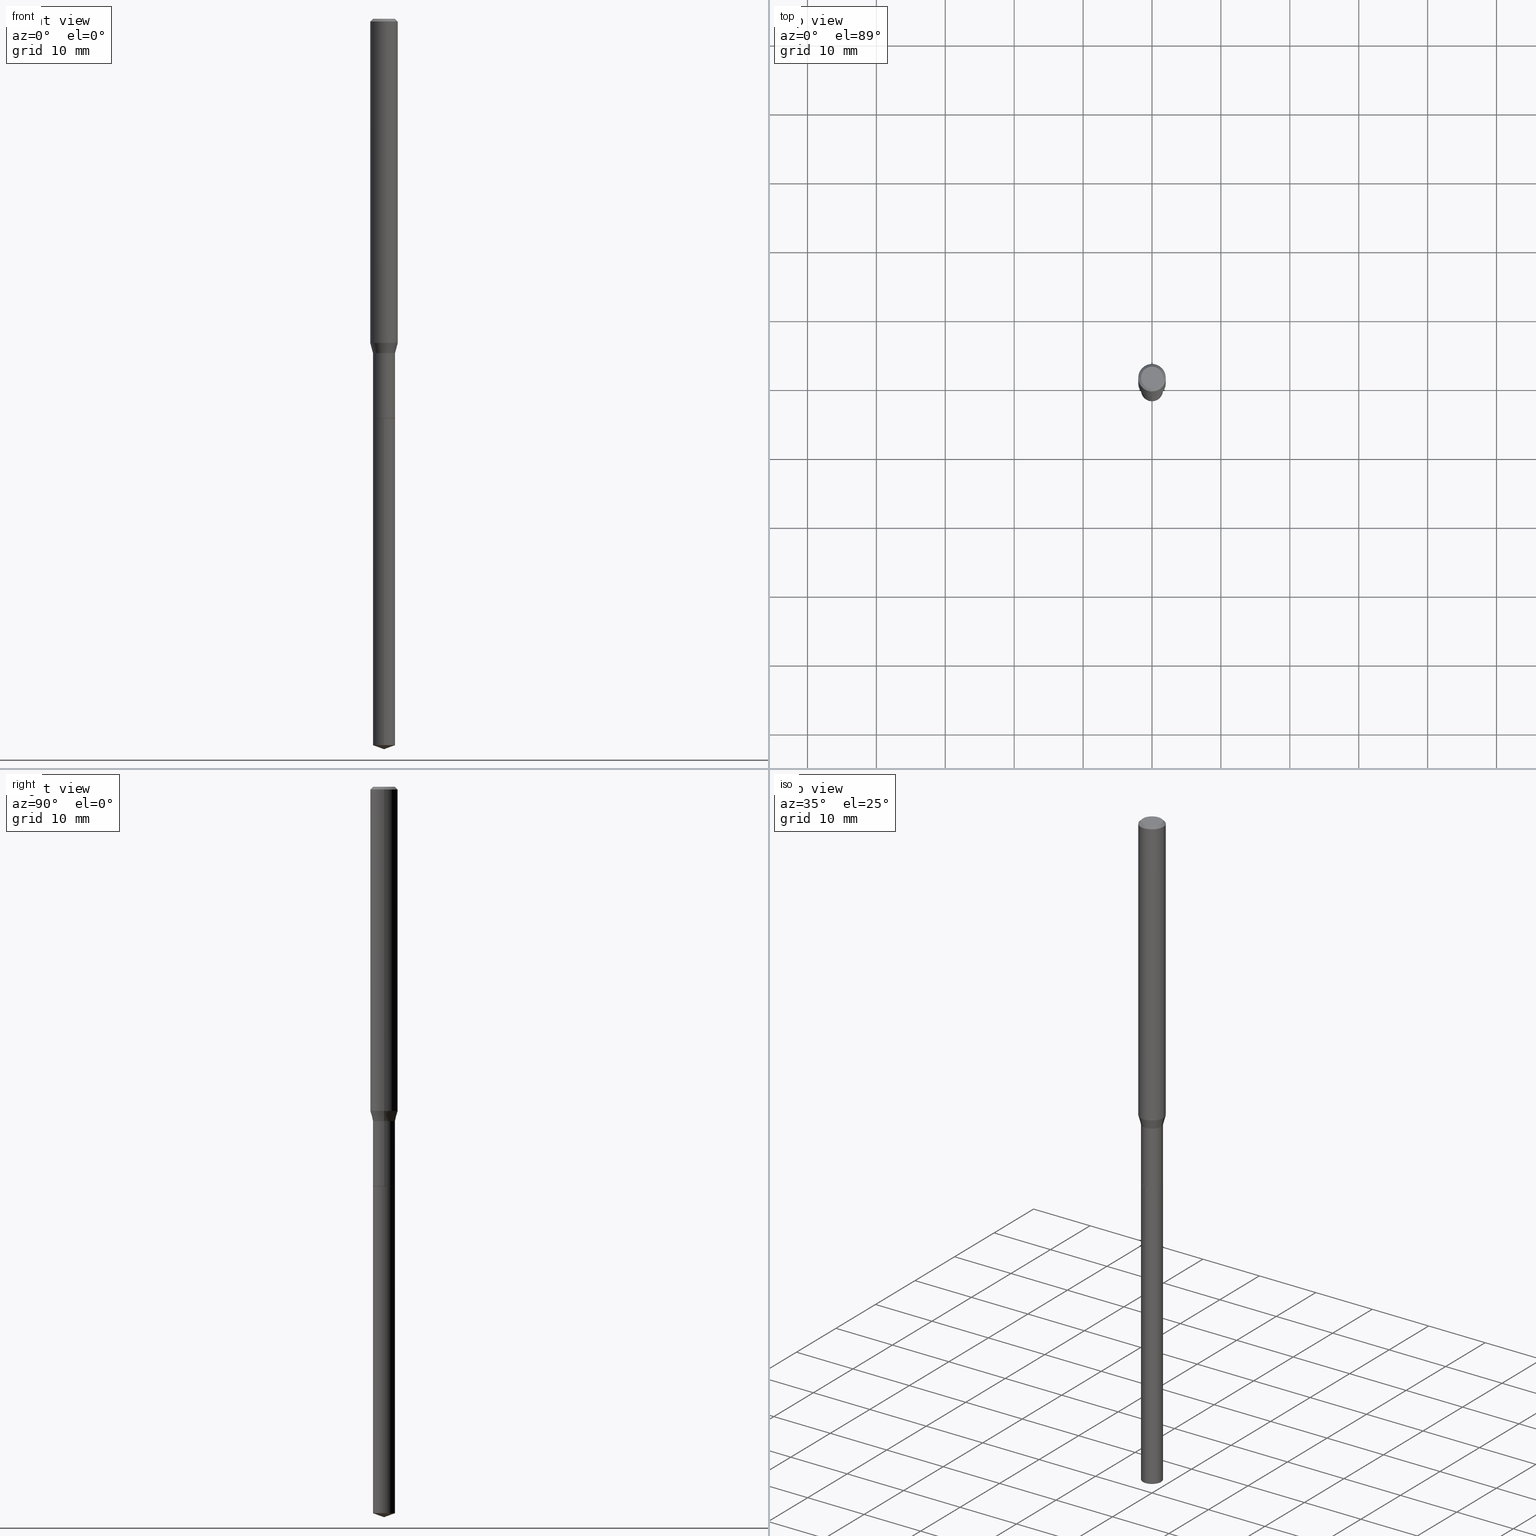
[diagram: canonical four-view strip — front | top / right | iso, engineering-drawing reading convention]
A machine part, canonical four-view strip (front | top / right | iso — engineering-drawing reading convention). The complete STEP part file that produces these views, byte-faithful:
ISO-10303-21;
HEADER;
FILE_DESCRIPTION (( 'STEP AP203' ),
    '1' );
FILE_NAME ('06053.STEP',
    '2024-04-23T19:10:07',
    ( '' ),
    ( '' ),
    'SwSTEP 2.0',
    'SolidWorks 2023',
    '' );
FILE_SCHEMA (( 'CONFIG_CONTROL_DESIGN' ));
ENDSEC;

DATA;
#1 = EDGE_CURVE ( 'NONE', #16, #3, #442, .T. ) ;
#2 = DIRECTION ( 'NONE',  ( -2.445427878602314829E-29, 3.491539949471199656E-15, 1.000000000000000000 ) ) ;
#3 = VERTEX_POINT ( 'NONE', #468 ) ;
#4 = DIRECTION ( 'NONE',  ( -0.2588190451025211836, 5.211531920934547886E-15, 0.9659258262890679791 ) ) ;
#5 = EDGE_CURVE ( 'NONE', #378, #139, #95, .T. ) ;
#6 = CIRCLE ( 'NONE', #487, 0.06299999999999998657 ) ;
#7 = VERTEX_POINT ( 'NONE', #279 ) ;
#8 = AXIS2_PLACEMENT_3D ( 'NONE', #272, #78, #156 ) ;
#9 = CARTESIAN_POINT ( 'NONE',  ( 0.07875000000000000056, -5.952550484112880131E-16, -0.01575000000000010419 ) ) ;
#10 = VERTEX_POINT ( 'NONE', #94 ) ;
#11 = CARTESIAN_POINT ( 'NONE',  ( -0.06299999999999994493, -6.872423277422732217E-15, -1.910199999999999676 ) ) ;
#12 = MANIFOLD_SOLID_BREP ( 'Body-Move/Copy2[2]', #198 ) ;
#13 = VERTEX_POINT ( 'NONE', #245 ) ;
#14 = CIRCLE ( 'NONE', #282, 0.06300000000000000044 ) ;
#15 = DIRECTION ( 'NONE',  ( -2.445468806185136597E-29, 3.491481338843145583E-15, 1.000000000000000000 ) ) ;
#16 = VERTEX_POINT ( 'NONE', #397 ) ;
#17 = LINE ( 'NONE', #392, #420 ) ;
#18 = EDGE_CURVE ( 'NONE', #139, #378, #164, .T. ) ;
#19 = VERTEX_POINT ( 'NONE', #471 ) ;
#20 = ORIENTED_EDGE ( 'NONE', *, *, #68, .T. ) ;
#21 = AXIS2_PLACEMENT_3D ( 'NONE', #332, #256, #375 ) ;
#22 = LOCAL_TIME ( 15, 10, 7.000000000000000000, #148 ) ;
#23 = CALENDAR_DATE ( 2024, 23, 4 ) ;
#24 = ORIENTED_EDGE ( 'NONE', *, *, #336, .F. ) ;
#25 = ADVANCED_FACE ( 'NONE', ( #135 ), #246, .T. ) ;
#26 = PRODUCT ( '06053', '06053', '', ( #209 ) ) ;
#27 = CARTESIAN_POINT ( 'NONE',  ( 0.07875000000000000056, -6.048991419545733705E-16, -0.01575000000000010419 ) ) ;
#28 = CC_DESIGN_PERSON_AND_ORGANIZATION_ASSIGNMENT ( #219, #254, ( #186 ) ) ;
#29 = COORDINATED_UNIVERSAL_TIME_OFFSET ( 5, 0, .BEHIND. ) ;
#30 = CARTESIAN_POINT ( 'NONE',  ( 5.582760737640047761E-29, -7.970702748445015750E-15, -2.282899999999999707 ) ) ;
#31 = APPLICATION_CONTEXT ( 'configuration controlled 3d designs of mechanical parts and assemblies' ) ;
#32 = VECTOR ( 'NONE', #262, 39.37007874015748143 ) ;
#33 = PERSON_AND_ORGANIZATION ( #294, #244 ) ;
#34 = CC_DESIGN_SECURITY_CLASSIFICATION ( #186, ( #396 ) ) ;
#35 = LINE ( 'NONE', #328, #411 ) ;
#36 = APPROVAL_DATE_TIME ( #181, #311 ) ;
#37 = DIRECTION ( 'NONE',  ( -6.982962677686265922E-15, -1.000000000000000000, 4.336266656609941617E-15 ) ) ;
#38 = DIRECTION ( 'NONE',  ( 1.000000000000000000, -6.982962677686262766E-15, 0.000000000000000000 ) ) ;
#39 = FACE_OUTER_BOUND ( 'NONE', #210, .T. ) ;
#40 = VECTOR ( 'NONE', #56, 39.37007874015748854 ) ;
#41 = ORIENTED_EDGE ( 'NONE', *, *, #132, .T. ) ;
#42 = DIRECTION ( 'NONE',  ( -6.982962677686265922E-15, -1.000000000000000000, 3.475157955500633045E-15 ) ) ;
#43 = EDGE_LOOP ( 'NONE', ( #263, #241, #237, #63 ) ) ;
#44 = ADVANCED_FACE ( 'NONE', ( #401 ), #449, .F. ) ;
#45 = CARTESIAN_POINT ( 'NONE',  ( 4.671334513574847415E-29, -6.669427653458175714E-15, -1.910199999999999676 ) ) ;
#46 = EDGE_LOOP ( 'NONE', ( #24, #177, #118, #490 ) ) ;
#47 = CARTESIAN_POINT ( 'NONE',  ( -0.06300000000000000044, 4.674220642376242452E-16, -3.855188123719040041E-18 ) ) ;
#48 = AXIS2_PLACEMENT_3D ( 'NONE', #194, #230, #122 ) ;
#49 = PRODUCT_RELATED_PRODUCT_CATEGORY ( 'detail', '', ( #26 ) ) ;
#50 = CARTESIAN_POINT ( 'NONE',  ( 4.671334513574847415E-29, -6.669427653458175714E-15, -1.910199999999999676 ) ) ;
#51 = ORIENTED_EDGE ( 'NONE', *, *, #336, .T. ) ;
#52 = UNCERTAINTY_MEASURE_WITH_UNIT (LENGTH_MEASURE( 1.000000000000000082E-05 ), #207, 'distance_accuracy_value', 'NONE');
#53 = CARTESIAN_POINT ( 'NONE',  ( -0.07875000000000000056, 4.949174797810136167E-16, -0.01575000000000010419 ) ) ;
#54 = ORIENTED_EDGE ( 'NONE', *, *, #485, .F. ) ;
#55 = ADVANCED_FACE ( 'NONE', ( #226 ), #291, .T. ) ;
#56 = DIRECTION ( 'NONE',  ( 0.2588190451025211836, 1.565188264969622559E-15, 0.9659258262890679791 ) ) ;
#57 = VERTEX_POINT ( 'NONE', #414 ) ;
#58 = AXIS2_PLACEMENT_3D ( 'NONE', #327, #298, #479 ) ;
#59 = CONICAL_SURFACE ( 'NONE', #363, 108.1684023407361792, 1.221730476396039711 ) ;
#60 = DIRECTION ( 'NONE',  ( -2.445468806185136597E-29, 3.491481338843145583E-15, 1.000000000000000000 ) ) ;
#61 = ADVANCED_FACE ( 'NONE', ( #410 ), #369, .T. ) ;
#62 = DIRECTION ( 'NONE',  ( 1.000000000000000000, 0.000000000000000000, 0.000000000000000000 ) ) ;
#63 = ORIENTED_EDGE ( 'NONE', *, *, #478, .F. ) ;
#64 = PERSON_AND_ORGANIZATION_ROLE ( 'creator' ) ;
#65 = ORIENTED_EDGE ( 'NONE', *, *, #187, .F. ) ;
#66 = APPROVAL_ROLE ( '' ) ;
#67 = CARTESIAN_POINT ( 'NONE',  ( 5.583983472043140562E-29, -7.972448489114438042E-15, -2.283399999999999874 ) ) ;
#68 = EDGE_CURVE ( 'NONE', #417, #13, #464, .T. ) ;
#69 = DATE_AND_TIME ( #23, #22 ) ;
#70 = DIRECTION ( 'NONE',  ( -2.445427878602314829E-29, 3.491539949471199656E-15, 1.000000000000000000 ) ) ;
#71 = DIRECTION ( 'NONE',  ( -2.445427878602314829E-29, 3.491539949471200051E-15, 1.000000000000000000 ) ) ;
#72 = DATE_AND_TIME ( #288, #456 ) ;
#73 = AXIS2_PLACEMENT_3D ( 'NONE', #454, #125, #269 ) ;
#74 = LINE ( 'NONE', #188, #426 ) ;
#75 = CC_DESIGN_DATE_AND_TIME_ASSIGNMENT ( #144, #292, ( #459 ) ) ;
#76 = DIRECTION ( 'NONE',  ( 2.445427878602314269E-29, -3.491539949471200051E-15, -1.000000000000000000 ) ) ;
#77 = CC_DESIGN_PERSON_AND_ORGANIZATION_ASSIGNMENT ( #334, #105, ( #396 ) ) ;
#78 = DIRECTION ( 'NONE',  ( -2.445468806185136597E-29, 3.491481338843145583E-15, 1.000000000000000000 ) ) ;
#79 = ORIENTED_EDGE ( 'NONE', *, *, #96, .F. ) ;
#80 = CARTESIAN_POINT ( 'NONE',  ( -8.607133505692360576E-28, 1.228914420494614776E-13, 35.19687874015748008 ) ) ;
#81 = CC_DESIGN_DATE_AND_TIME_ASSIGNMENT ( #72, #402, ( #186 ) ) ;
#82 = CIRCLE ( 'NONE', #8, 0.06250000000000000000 ) ;
#83 = DIRECTION ( 'NONE',  ( 1.000000000000000000, -6.982962677686265922E-15, 4.875905316334701673E-29 ) ) ;
#84 = ORIENTED_EDGE ( 'NONE', *, *, #221, .T. ) ;
#85 = DIRECTION ( 'NONE',  ( 1.000000000000000000, -6.982962677686267499E-15, 4.876176775795936353E-29 ) ) ;
#86 = ORIENTED_EDGE ( 'NONE', *, *, #1, .F. ) ;
#87 = CARTESIAN_POINT ( 'NONE',  ( 5.583983472043140562E-29, -7.972448489114438042E-15, -2.283399999999999874 ) ) ;
#88 = AXIS2_PLACEMENT_3D ( 'NONE', #189, #261, #38 ) ;
#89 = EDGE_LOOP ( 'NONE', ( #435, #51, #361, #277 ) ) ;
#90 = CARTESIAN_POINT ( 'NONE',  ( 0.06299999999999994493, -7.109354302152408812E-15, -1.910199999999999676 ) ) ;
#91 = EDGE_LOOP ( 'NONE', ( #347, #128, #86 ) ) ;
#92 = CARTESIAN_POINT ( 'NONE',  ( 4.527590345704972741E-29, -6.464199077891873134E-15, -1.851420199780788867 ) ) ;
#93 = ORIENTED_EDGE ( 'NONE', *, *, #5, .F. ) ;
#94 = CARTESIAN_POINT ( 'NONE',  ( -0.07875000000000023648, -5.904646673480791966E-15, -1.851420199780788867 ) ) ;
#95 = CIRCLE ( 'NONE', #142, 0.07875000000000000056 ) ;
#96 = EDGE_CURVE ( 'NONE', #3, #417, #482, .T. ) ;
#97 = VECTOR ( 'NONE', #360, 39.37007874015748143 ) ;
#98 = CARTESIAN_POINT ( 'NONE',  ( 3.851613369741615237E-31, -5.499083108677990156E-17, -0.01575000000000010419 ) ) ;
#99 = LINE ( 'NONE', #248, #355 ) ;
#100 = DIRECTION ( 'NONE',  ( -2.445468806185136597E-29, 3.491481338843145583E-15, 1.000000000000000000 ) ) ;
#101 = PERSON_AND_ORGANIZATION_ROLE ( 'creator' ) ;
#102 = LINE ( 'NONE', #149, #330 ) ;
#103 = AXIS2_PLACEMENT_3D ( 'NONE', #287, #70, #37 ) ;
#104 = APPROVAL_PERSON_ORGANIZATION ( #365, #247, #213 ) ;
#105 = PERSON_AND_ORGANIZATION_ROLE ( 'design_supplier' ) ;
#106 = ADVANCED_FACE ( 'NONE', ( #293 ), #150, .T. ) ;
#107 = DIRECTION ( 'NONE',  ( -6.982962677686265922E-15, -1.000000000000000000, 3.475157955500633045E-15 ) ) ;
#108 = CARTESIAN_POINT ( 'NONE',  ( 0.000000000000000000, 0.000000000000000000, 0.000000000000000000 ) ) ;
#109 = ADVANCED_FACE ( 'NONE', ( #440 ), #290, .T. ) ;
#110 = CALENDAR_DATE ( 2024, 23, 4 ) ;
#111 = FACE_OUTER_BOUND ( 'NONE', #91, .T. ) ;
#112 = APPROVAL_STATUS ( 'not_yet_approved' ) ;
#113 = AXIS2_PLACEMENT_3D ( 'NONE', #450, #115, #424 ) ;
#114 = FACE_OUTER_BOUND ( 'NONE', #461, .T. ) ;
#115 = DIRECTION ( 'NONE',  ( -2.438088387897960049E-29, 3.491481338843145188E-15, 1.000000000000000000 ) ) ;
#116 = ORIENTED_EDGE ( 'NONE', *, *, #200, .T. ) ;
#117 = PLANE ( 'NONE',  #113 ) ;
#118 = ORIENTED_EDGE ( 'NONE', *, *, #436, .T. ) ;
#119 = AXIS2_PLACEMENT_3D ( 'NONE', #108, #225, #85 ) ;
#120 = CARTESIAN_POINT ( 'NONE',  ( 5.583983472043140562E-29, -7.972448489114438042E-15, -2.283399999999999874 ) ) ;
#121 = CIRCLE ( 'NONE', #329, 0.06300000000000000044 ) ;
#122 = DIRECTION ( 'NONE',  ( -1.000000000000000000, 6.982962677686265922E-15, -4.876176775795935793E-29 ) ) ;
#123 = ORIENTED_EDGE ( 'NONE', *, *, #305, .T. ) ;
#124 = ADVANCED_FACE ( 'NONE', ( #444 ), #299, .T. ) ;
#125 = DIRECTION ( 'NONE',  ( -2.445468806185136597E-29, 3.491481338843145583E-15, 1.000000000000000000 ) ) ;
#126 = ORIENTED_EDGE ( 'NONE', *, *, #296, .T. ) ;
#127 = DIRECTION ( 'NONE',  ( 1.000000000000000000, -6.982962677686265922E-15, 4.875905316334701673E-29 ) ) ;
#128 = ORIENTED_EDGE ( 'NONE', *, *, #416, .T. ) ;
#129 = AXIS2_PLACEMENT_3D ( 'NONE', #152, #451, #83 ) ;
#130 = CARTESIAN_POINT ( 'NONE',  ( 3.851613369741615237E-31, -5.499083108677990156E-17, -0.01575000000000010419 ) ) ;
#131 = LENGTH_MEASURE_WITH_UNIT ( LENGTH_MEASURE( 0.02539999999999999897 ), #429 );
#132 = EDGE_CURVE ( 'NONE', #270, #399, #102, .T. ) ;
#133 = VERTEX_POINT ( 'NONE', #371 ) ;
#134 = CARTESIAN_POINT ( 'NONE',  ( 1.020525962298318050E-28, -1.457089451713320805E-14, -4.173199999999999577 ) ) ;
#135 = FACE_OUTER_BOUND ( 'NONE', #163, .T. ) ;
#136 = CIRCLE ( 'NONE', #267, 0.06250000000000000000 ) ;
#137 = AXIS2_PLACEMENT_3D ( 'NONE', #470, #15, #354 ) ;
#138 = APPLICATION_PROTOCOL_DEFINITION ( 'international standard', 'config_control_design', 1994, #184 ) ;
#139 = VERTEX_POINT ( 'NONE', #27 ) ;
#140 = DIRECTION ( 'NONE',  ( 1.000000000000000000, -6.982962677686267499E-15, 4.876176775795936353E-29 ) ) ;
#141 = DIRECTION ( 'NONE',  ( -2.445468806185136597E-29, 3.491481338843145583E-15, 1.000000000000000000 ) ) ;
#142 = AXIS2_PLACEMENT_3D ( 'NONE', #130, #438, #278 ) ;
#143 = CONICAL_SURFACE ( 'NONE', #481, 0.06299999999999994493, 0.2617993877991499074 ) ;
#144 = DATE_AND_TIME ( #178, #488 ) ;
#145 = CARTESIAN_POINT ( 'NONE',  ( 5.583983472043140562E-29, -7.972448489114438042E-15, -2.283399999999999874 ) ) ;
#146 = DIRECTION ( 'NONE',  ( -2.445427878602314829E-29, 3.491539949471199656E-15, 1.000000000000000000 ) ) ;
#147 = CC_DESIGN_PERSON_AND_ORGANIZATION_ASSIGNMENT ( #171, #322, ( #26 ) ) ;
#148 = COORDINATED_UNIVERSAL_TIME_OFFSET ( 5, 0, .BEHIND. ) ;
#149 = CARTESIAN_POINT ( 'NONE',  ( 0.06299999999999997269, -4.399266486942345286E-16, 3.071991368751438022E-30 ) ) ;
#150 = CONICAL_SURFACE ( 'NONE', #21, 0.07875000000000000056, 0.7853981633974450594 ) ;
#151 = VECTOR ( 'NONE', #303, 39.37007874015748143 ) ;
#152 = CARTESIAN_POINT ( 'NONE',  ( 9.427742298522557911E-47, -1.346031739168366987E-32, -3.855188123715866879E-18 ) ) ;
#153 = PLANE ( 'NONE',  #48 ) ;
#154 = CYLINDRICAL_SURFACE ( 'NONE', #73, 0.06299999999999997269 ) ;
#155 = ORIENTED_EDGE ( 'NONE', *, *, #68, .F. ) ;
#156 = DIRECTION ( 'NONE',  ( 1.000000000000000000, -6.982962677686262766E-15, 0.000000000000000000 ) ) ;
#157 = CC_DESIGN_APPROVAL ( #311, ( #186 ) ) ;
#158 = ORIENTED_EDGE ( 'NONE', *, *, #320, .F. ) ;
#159 = DIRECTION ( 'NONE',  ( -2.445468806185136597E-29, 3.491481338843145583E-15, 1.000000000000000000 ) ) ;
#160 = ORIENTED_EDGE ( 'NONE', *, *, #132, .F. ) ;
#161 = CC_DESIGN_PERSON_AND_ORGANIZATION_ASSIGNMENT ( #439, #64, ( #459 ) ) ;
#162 = DIRECTION ( 'NONE',  ( -2.445468806185136597E-29, 3.491481338843145583E-15, 1.000000000000000000 ) ) ;
#163 = EDGE_LOOP ( 'NONE', ( #203, #430, #381, #160 ) ) ;
#164 = CIRCLE ( 'NONE', #223, 0.07875000000000000056 ) ;
#165 = ORIENTED_EDGE ( 'NONE', *, *, #196, .F. ) ;
#166 = DIMENSIONAL_EXPONENTS ( 1.000000000000000000, 0.000000000000000000, 0.000000000000000000, 0.000000000000000000, 0.000000000000000000, 0.000000000000000000, 0.000000000000000000 ) ;
#167 = EDGE_LOOP ( 'NONE', ( #318, #306, #283 ) ) ;
#168 = LINE ( 'NONE', #53, #345 ) ;
#169 = MANIFOLD_SOLID_BREP ( 'Body-Move/Copy2[1]', #228 ) ;
#170 = ORIENTED_EDGE ( 'NONE', *, *, #374, .F. ) ;
#171 = PERSON_AND_ORGANIZATION ( #294, #244 ) ;
#172 = EDGE_LOOP ( 'NONE', ( #340, #116, #393, #316 ) ) ;
#173 = ADVANCED_FACE ( 'NONE', ( #111 ), #215, .T. ) ;
#174 = VECTOR ( 'NONE', #71, 39.37007874015748143 ) ;
#175 = VECTOR ( 'NONE', #231, 39.37007874015748143 ) ;
#176 = APPROVAL_DATE_TIME ( #405, #453 ) ;
#177 = ORIENTED_EDGE ( 'NONE', *, *, #296, .F. ) ;
#178 = CALENDAR_DATE ( 2024, 23, 4 ) ;
#179 = DIRECTION ( 'NONE',  ( -2.445468806185136597E-29, 3.491481338843145583E-15, 1.000000000000000000 ) ) ;
#180 = EDGE_CURVE ( 'NONE', #19, #270, #6, .T. ) ;
#181 = DATE_AND_TIME ( #373, #191 ) ;
#182 = CARTESIAN_POINT ( 'NONE',  ( 3.851613369741615237E-31, -5.499083108677990156E-17, -0.01575000000000010419 ) ) ;
#183 = CIRCLE ( 'NONE', #275, 0.06299999999999998657 ) ;
#184 = APPLICATION_CONTEXT ( 'configuration controlled 3d designs of mechanical parts and assemblies' ) ;
#185 = AXIS2_PLACEMENT_3D ( 'NONE', #87, #337, #302 ) ;
#186 = SECURITY_CLASSIFICATION ( '', '', #409 ) ;
#187 = EDGE_CURVE ( 'NONE', #273, #57, #136, .T. ) ;
#188 = CARTESIAN_POINT ( 'NONE',  ( 0.07875000000000011158, -5.499083108677943318E-16, 3.839989210939305322E-30 ) ) ;
#189 = CARTESIAN_POINT ( 'NONE',  ( 5.583983472043140562E-29, -7.972448489114438042E-15, -2.283399999999999874 ) ) ;
#190 = DIRECTION ( 'NONE',  ( -6.982962677686265922E-15, -1.000000000000000000, 0.000000000000000000 ) ) ;
#191 = LOCAL_TIME ( 15, 10, 7.000000000000000000, #29 ) ;
#192 = LINE ( 'NONE', #486, #175 ) ;
#193 = ORIENTED_EDGE ( 'NONE', *, *, #204, .T. ) ;
#194 = CARTESIAN_POINT ( 'NONE',  ( 4.713871149261278955E-47, -6.730158695841834933E-33, -1.927594061857933439E-18 ) ) ;
#195 = ORIENTED_EDGE ( 'NONE', *, *, #466, .T. ) ;
#196 = EDGE_CURVE ( 'NONE', #19, #425, #35, .T. ) ;
#197 = FACE_OUTER_BOUND ( 'NONE', #452, .T. ) ;
#198 = CLOSED_SHELL ( 'NONE', ( #55, #106, #61, #384, #25, #352, #400, #252, #124, #300, #314, #284 ) ) ;
#199 = FACE_OUTER_BOUND ( 'NONE', #389, .T. ) ;
#200 = EDGE_CURVE ( 'NONE', #425, #399, #472, .T. ) ;
#201 = AXIS2_PLACEMENT_3D ( 'NONE', #462, #285, #127 ) ;
#202 = DIRECTION ( 'NONE',  ( -2.445468806185136597E-29, 3.491481338843145583E-15, 1.000000000000000000 ) ) ;
#203 = ORIENTED_EDGE ( 'NONE', *, *, #260, .T. ) ;
#204 = EDGE_CURVE ( 'NONE', #133, #139, #74, .T. ) ;
#205 = DIRECTION ( 'NONE',  ( -6.561838499445221362E-15, -0.9396926207859103153, 0.3420201433256635504 ) ) ;
#206 = ORIENTED_EDGE ( 'NONE', *, *, #187, .T. ) ;
#207 =( CONVERSION_BASED_UNIT ( 'INCH', #131 ) LENGTH_UNIT ( ) NAMED_UNIT ( #166 ) );
#208 = ORIENTED_EDGE ( 'NONE', *, *, #394, .T. ) ;
#209 = MECHANICAL_CONTEXT ( 'NONE', #184, 'mechanical' ) ;
#210 = EDGE_LOOP ( 'NONE', ( #165, #344, #41, #313 ) ) ;
#211 = LINE ( 'NONE', #90, #40 ) ;
#212 = EDGE_LOOP ( 'NONE', ( #170, #463, #458, #364 ) ) ;
#213 = APPROVAL_ROLE ( '' ) ;
#214 = DIRECTION ( 'NONE',  ( -2.445427878602314829E-29, 3.491539949471199656E-15, 1.000000000000000000 ) ) ;
#215 = CONICAL_SURFACE ( 'NONE', #480, 108.1684023407361792, 1.221730476396039711 ) ;
#216 =( GEOMETRIC_REPRESENTATION_CONTEXT ( 3 ) GLOBAL_UNCERTAINTY_ASSIGNED_CONTEXT ( ( #52 ) ) GLOBAL_UNIT_ASSIGNED_CONTEXT ( ( #207, #350, #433 ) ) REPRESENTATION_CONTEXT ( 'NONE', 'WORKASPACE' ) );
#217 = APPROVAL_STATUS ( 'not_yet_approved' ) ;
#218 = DIRECTION ( 'NONE',  ( -2.445468806185136597E-29, 3.491481338843145583E-15, 1.000000000000000000 ) ) ;
#219 = PERSON_AND_ORGANIZATION ( #294, #244 ) ;
#220 = DIRECTION ( 'NONE',  ( -6.982962677686265922E-15, -1.000000000000000000, 4.336266656609941617E-15 ) ) ;
#221 = EDGE_CURVE ( 'NONE', #13, #417, #121, .T. ) ;
#222 = DIRECTION ( 'NONE',  ( 6.982962677686265922E-15, 1.000000000000000000, -3.491539949471200051E-15 ) ) ;
#223 = AXIS2_PLACEMENT_3D ( 'NONE', #98, #60, #321 ) ;
#224 = CIRCLE ( 'NONE', #323, 0.07875000000000023648 ) ;
#225 = DIRECTION ( 'NONE',  ( -2.445468806185136597E-29, 3.491481338843145583E-15, 1.000000000000000000 ) ) ;
#226 = FACE_OUTER_BOUND ( 'NONE', #349, .T. ) ;
#227 = CARTESIAN_POINT ( 'NONE',  ( -0.07875000000000000056, -2.700042550078244672E-15, -0.01575000000000010419 ) ) ;
#228 = CLOSED_SHELL ( 'NONE', ( #357, #289, #173, #109, #44 ) ) ;
#229 = AXIS2_PLACEMENT_3D ( 'NONE', #120, #233, #457 ) ;
#230 = DIRECTION ( 'NONE',  ( 2.438088387897960049E-29, -3.491481338843145188E-15, -1.000000000000000000 ) ) ;
#231 = DIRECTION ( 'NONE',  ( -2.445427878602314829E-29, 3.491539949471200051E-15, 1.000000000000000000 ) ) ;
#232 = ORIENTED_EDGE ( 'NONE', *, *, #485, .T. ) ;
#233 = DIRECTION ( 'NONE',  ( -2.445468806185136597E-29, 3.491481338843145583E-15, 1.000000000000000000 ) ) ;
#234 = ORIENTED_EDGE ( 'NONE', *, *, #320, .T. ) ;
#235 = AXIS2_PLACEMENT_3D ( 'NONE', #474, #100, #249 ) ;
#236 = CYLINDRICAL_SURFACE ( 'NONE', #185, 0.06300000000000000044 ) ;
#237 = ORIENTED_EDGE ( 'NONE', *, *, #305, .F. ) ;
#238 = DIRECTION ( 'NONE',  ( -2.445468806185136877E-29, 3.491481338843145188E-15, 1.000000000000000000 ) ) ;
#239 = EDGE_LOOP ( 'NONE', ( #54, #234, #386, #266 ) ) ;
#240 = LINE ( 'NONE', #467, #97 ) ;
#241 = ORIENTED_EDGE ( 'NONE', *, *, #271, .T. ) ;
#242 = ADVANCED_BREP_SHAPE_REPRESENTATION ( '06053', ( #169, #12, #315 ), #216 ) ;
#243 = AXIS2_PLACEMENT_3D ( 'NONE', #351, #214, #286 ) ;
#244 = ORGANIZATION ( 'UNSPECIFIED', 'UNSPECIFIED', '' ) ;
#245 = CARTESIAN_POINT ( 'NONE',  ( 4.476419235289648833E-16, 0.06299999999999202072, -2.283399999999999874 ) ) ;
#246 = CYLINDRICAL_SURFACE ( 'NONE', #235, 0.06299999999999997269 ) ;
#247 = APPROVAL ( #217, 'UNSPECIFIED' ) ;
#248 = CARTESIAN_POINT ( 'NONE',  ( -0.07875000000000011158, 5.595524044110796892E-16, -3.873661383575744098E-30 ) ) ;
#249 = DIRECTION ( 'NONE',  ( 1.000000000000000000, -6.982962677686265133E-15, 4.876176775795935232E-29 ) ) ;
#250 = APPROVAL_DATE_TIME ( #69, #247 ) ;
#251 = DIRECTION ( 'NONE',  ( -2.445468806185136877E-29, 3.491481338843145188E-15, 1.000000000000000000 ) ) ;
#252 = ADVANCED_FACE ( 'NONE', ( #114 ), #445, .T. ) ;
#253 = CIRCLE ( 'NONE', #268, 0.07875000000000023648 ) ;
#254 = PERSON_AND_ORGANIZATION_ROLE ( 'classification_officer' ) ;
#255 = DIRECTION ( 'NONE',  ( 1.000000000000000000, -6.982962677686272233E-15, 0.000000000000000000 ) ) ;
#256 = DIRECTION ( 'NONE',  ( 2.445468806185136597E-29, -3.491481338843145583E-15, -1.000000000000000000 ) ) ;
#257 = PERSON_AND_ORGANIZATION ( #294, #244 ) ;
#258 = DIRECTION ( 'NONE',  ( -2.445468806185136877E-29, 3.491481338843145188E-15, 1.000000000000000000 ) ) ;
#259 = AXIS2_PLACEMENT_3D ( 'NONE', #376, #141, #140 ) ;
#260 = EDGE_CURVE ( 'NONE', #270, #19, #183, .T. ) ;
#261 = DIRECTION ( 'NONE',  ( -2.445468806185136597E-29, 3.491481338843145583E-15, 1.000000000000000000 ) ) ;
#262 = DIRECTION ( 'NONE',  ( 0.7071067811866138531, -2.468850131082952047E-15, 0.7071067811864811814 ) ) ;
#263 = ORIENTED_EDGE ( 'NONE', *, *, #408, .T. ) ;
#264 = LINE ( 'NONE', #380, #32 ) ;
#265 = EDGE_CURVE ( 'NONE', #273, #270, #264, .T. ) ;
#266 = ORIENTED_EDGE ( 'NONE', *, *, #180, .F. ) ;
#267 = AXIS2_PLACEMENT_3D ( 'NONE', #367, #179, #335 ) ;
#268 = AXIS2_PLACEMENT_3D ( 'NONE', #92, #162, #312 ) ;
#269 = DIRECTION ( 'NONE',  ( 1.000000000000000000, -6.982962677686265133E-15, 4.876176775795935232E-29 ) ) ;
#270 = VERTEX_POINT ( 'NONE', #377 ) ;
#271 = EDGE_CURVE ( 'NONE', #425, #10, #388, .T. ) ;
#272 = CARTESIAN_POINT ( 'NONE',  ( 5.583983472043140562E-29, -7.972448489114438042E-15, -2.283399999999999874 ) ) ;
#273 = VERTEX_POINT ( 'NONE', #308 ) ;
#274 = DIRECTION ( 'NONE',  ( -2.445468806185136597E-29, 3.491481338843145583E-15, 1.000000000000000000 ) ) ;
#275 = AXIS2_PLACEMENT_3D ( 'NONE', #489, #274, #418 ) ;
#276 = LINE ( 'NONE', #431, #473 ) ;
#277 = ORIENTED_EDGE ( 'NONE', *, *, #436, .F. ) ;
#278 = DIRECTION ( 'NONE',  ( 1.000000000000000000, -6.982962677686265922E-15, 0.000000000000000000 ) ) ;
#279 = CARTESIAN_POINT ( 'NONE',  ( 0.06300000000000000044, -5.137332111354472216E-16, -3.855188123712532709E-18 ) ) ;
#280 = DIRECTION ( 'NONE',  ( 6.676917655467989428E-15, 0.9396926207859126468, 0.3420201433256570001 ) ) ;
#281 = AXIS2_PLACEMENT_3D ( 'NONE', #326, #477, #220 ) ;
#282 = AXIS2_PLACEMENT_3D ( 'NONE', #346, #2, #190 ) ;
#283 = ORIENTED_EDGE ( 'NONE', *, *, #333, .F. ) ;
#284 = ADVANCED_FACE ( 'NONE', ( #415 ), #403, .T. ) ;
#285 = DIRECTION ( 'NONE',  ( -2.445468806185136597E-29, 3.491481338843145583E-15, 1.000000000000000000 ) ) ;
#286 = DIRECTION ( 'NONE',  ( -6.982962677686265922E-15, -1.000000000000000000, 0.000000000000000000 ) ) ;
#287 = CARTESIAN_POINT ( 'NONE',  ( 5.583983472043140562E-29, -7.972448489114438042E-15, -2.283399999999999874 ) ) ;
#288 = CALENDAR_DATE ( 2024, 23, 4 ) ;
#289 = ADVANCED_FACE ( 'NONE', ( #460 ), #59, .T. ) ;
#290 = CYLINDRICAL_SURFACE ( 'NONE', #103, 0.06300000000000000044 ) ;
#291 = CONICAL_SURFACE ( 'NONE', #88, 0.06250000000000000000, 0.7853981633975420928 ) ;
#292 = DATE_TIME_ROLE ( 'creation_date' ) ;
#293 = FACE_OUTER_BOUND ( 'NONE', #89, .T. ) ;
#294 = PERSON ( 'UNSPECIFIED', 'UNSPECIFIED', 'UNSPECIFIED', ('UNSPECIFIED'), ('UNSPECIFIED'), ('UNSPECIFIED') ) ;
#295 = CARTESIAN_POINT ( 'NONE',  ( -4.399266486941789139E-16, -0.06300000000000798017, -2.283399999999999430 ) ) ;
#296 = EDGE_CURVE ( 'NONE', #324, #7, #379, .T. ) ;
#297 = APPROVAL_ROLE ( '' ) ;
#298 = DIRECTION ( 'NONE',  ( -2.445468806185136597E-29, 3.491481338843145583E-15, 1.000000000000000000 ) ) ;
#299 = CONICAL_SURFACE ( 'NONE', #353, 0.07875000000000000056, 0.7853981633974450594 ) ;
#300 = ADVANCED_FACE ( 'NONE', ( #199 ), #153, .F. ) ;
#301 = APPROVAL_PERSON_ORGANIZATION ( #33, #311, #66 ) ;
#302 = DIRECTION ( 'NONE',  ( -6.982962677686265922E-15, -1.000000000000000000, 4.336266656609941617E-15 ) ) ;
#303 = DIRECTION ( 'NONE',  ( 0.7071067811865452413, -7.319954787623248157E-15, -0.7071067811865497932 ) ) ;
#304 = LINE ( 'NONE', #9, #151 ) ;
#305 = EDGE_CURVE ( 'NONE', #133, #10, #224, .T. ) ;
#306 = ORIENTED_EDGE ( 'NONE', *, *, #475, .T. ) ;
#307 = VECTOR ( 'NONE', #4, 39.37007874015748854 ) ;
#308 = CARTESIAN_POINT ( 'NONE',  ( 0.06250000000000000000, -8.408883656469829712E-15, -2.283399999999999874 ) ) ;
#309 = DIRECTION ( 'NONE',  ( 1.000000000000000000, -6.982962677686265133E-15, 0.000000000000000000 ) ) ;
#310 = ORIENTED_EDGE ( 'NONE', *, *, #333, .T. ) ;
#311 = APPROVAL ( #112, 'UNSPECIFIED' ) ;
#312 = DIRECTION ( 'NONE',  ( 1.000000000000000000, -6.982962677686265133E-15, 0.000000000000000000 ) ) ;
#313 = ORIENTED_EDGE ( 'NONE', *, *, #200, .F. ) ;
#314 = ADVANCED_FACE ( 'NONE', ( #197 ), #117, .F. ) ;
#315 = AXIS2_PLACEMENT_3D ( 'NONE', #437, #398, #62 ) ;
#316 = ORIENTED_EDGE ( 'NONE', *, *, #446, .F. ) ;
#317 = DIRECTION ( 'NONE',  ( 1.000000000000000000, -6.982962677686261977E-15, 0.000000000000000000 ) ) ;
#318 = ORIENTED_EDGE ( 'NONE', *, *, #416, .F. ) ;
#319 = DIRECTION ( 'NONE',  ( -0.7071067811865452413, 2.468850131082233000E-15, -0.7071067811865497932 ) ) ;
#320 = EDGE_CURVE ( 'NONE', #57, #273, #82, .T. ) ;
#321 = DIRECTION ( 'NONE',  ( 1.000000000000000000, -6.982962677686265922E-15, 0.000000000000000000 ) ) ;
#322 = PERSON_AND_ORGANIZATION_ROLE ( 'design_owner' ) ;
#323 = AXIS2_PLACEMENT_3D ( 'NONE', #341, #159, #309 ) ;
#324 = VERTEX_POINT ( 'NONE', #47 ) ;
#325 = PERSON_AND_ORGANIZATION ( #294, #244 ) ;
#326 = CARTESIAN_POINT ( 'NONE',  ( 5.583983472043140562E-29, -7.972448489114438042E-15, -2.283399999999999874 ) ) ;
#327 = CARTESIAN_POINT ( 'NONE',  ( 4.671334513574847415E-29, -6.669427653458175714E-15, -1.910199999999999676 ) ) ;
#328 = CARTESIAN_POINT ( 'NONE',  ( -0.06299999999999997269, 4.476419235288629230E-16, -3.098929106860588902E-30 ) ) ;
#329 = AXIS2_PLACEMENT_3D ( 'NONE', #145, #146, #483 ) ;
#330 = VECTOR ( 'NONE', #251, 39.37007874015748143 ) ;
#331 = AXIS2_PLACEMENT_3D ( 'NONE', #45, #343, #339 ) ;
#332 = CARTESIAN_POINT ( 'NONE',  ( 3.851613369741615237E-31, -5.499083108677990156E-17, -0.01575000000000010419 ) ) ;
#333 = EDGE_CURVE ( 'NONE', #3, #16, #14, .T. ) ;
#334 = PERSON_AND_ORGANIZATION ( #294, #244 ) ;
#335 = DIRECTION ( 'NONE',  ( 1.000000000000000000, -6.982962677686262766E-15, 0.000000000000000000 ) ) ;
#336 = EDGE_CURVE ( 'NONE', #7, #139, #304, .T. ) ;
#337 = DIRECTION ( 'NONE',  ( -2.445427878602314829E-29, 3.491539949471199656E-15, 1.000000000000000000 ) ) ;
#338 = APPROVAL_PERSON_ORGANIZATION ( #257, #453, #297 ) ;
#339 = DIRECTION ( 'NONE',  ( 1.000000000000000000, -6.982962677686261977E-15, 0.000000000000000000 ) ) ;
#340 = ORIENTED_EDGE ( 'NONE', *, *, #271, .F. ) ;
#341 = CARTESIAN_POINT ( 'NONE',  ( 4.527590345704972741E-29, -6.464199077891873134E-15, -1.851420199780788867 ) ) ;
#342 = EDGE_LOOP ( 'NONE', ( #20, #84 ) ) ;
#343 = DIRECTION ( 'NONE',  ( -2.445468806185136597E-29, 3.491481338843145583E-15, 1.000000000000000000 ) ) ;
#344 = ORIENTED_EDGE ( 'NONE', *, *, #180, .T. ) ;
#345 = VECTOR ( 'NONE', #319, 39.37007874015748143 ) ;
#346 = CARTESIAN_POINT ( 'NONE',  ( 1.014927911068086935E-28, -1.449069923898350570E-14, -4.150269875241229478 ) ) ;
#347 = ORIENTED_EDGE ( 'NONE', *, *, #475, .F. ) ;
#348 = CARTESIAN_POINT ( 'NONE',  ( -4.399266486941789139E-16, -0.06300000000000798017, -2.283399999999999430 ) ) ;
#349 = EDGE_LOOP ( 'NONE', ( #206, #232, #432, #434 ) ) ;
#350 =( NAMED_UNIT ( * ) PLANE_ANGLE_UNIT ( ) SI_UNIT ( $, .RADIAN. ) );
#351 = CARTESIAN_POINT ( 'NONE',  ( 1.014927911068086935E-28, -1.449069923898350570E-14, -4.150269875241229478 ) ) ;
#352 = ADVANCED_FACE ( 'NONE', ( #39 ), #154, .T. ) ;
#353 = AXIS2_PLACEMENT_3D ( 'NONE', #182, #484, #407 ) ;
#354 = DIRECTION ( 'NONE',  ( 1.000000000000000000, -6.982962677686261977E-15, 0.000000000000000000 ) ) ;
#355 = VECTOR ( 'NONE', #238, 39.37007874015748143 ) ;
#356 = EDGE_LOOP ( 'NONE', ( #310, #383, #155, #79 ) ) ;
#357 = ADVANCED_FACE ( 'NONE', ( #421 ), #236, .T. ) ;
#358 = FACE_OUTER_BOUND ( 'NONE', #172, .T. ) ;
#359 = ORIENTED_EDGE ( 'NONE', *, *, #446, .T. ) ;
#360 = DIRECTION ( 'NONE',  ( -0.7071067811866138531, 7.493145998870593974E-15, 0.7071067811864811814 ) ) ;
#361 = ORIENTED_EDGE ( 'NONE', *, *, #18, .T. ) ;
#362 = COORDINATED_UNIVERSAL_TIME_OFFSET ( 5, 0, .BEHIND. ) ;
#363 = AXIS2_PLACEMENT_3D ( 'NONE', #80, #385, #42 ) ;
#364 = ORIENTED_EDGE ( 'NONE', *, *, #221, .F. ) ;
#365 = PERSON_AND_ORGANIZATION ( #294, #244 ) ;
#366 = PRODUCT_DEFINITION_SHAPE ( 'NONE', 'NONE',  #459 ) ;
#367 = CARTESIAN_POINT ( 'NONE',  ( 5.583983472043140562E-29, -7.972448489114438042E-15, -2.283399999999999874 ) ) ;
#368 = APPROVAL_STATUS ( 'not_yet_approved' ) ;
#369 = CYLINDRICAL_SURFACE ( 'NONE', #259, 0.07875000000000011158 ) ;
#370 = COORDINATED_UNIVERSAL_TIME_OFFSET ( 5, 0, .BEHIND. ) ;
#371 = CARTESIAN_POINT ( 'NONE',  ( 0.07875000000000023648, -7.014107388759668057E-15, -1.851420199780788867 ) ) ;
#372 = AXIS2_PLACEMENT_3D ( 'NONE', #67, #76, #222 ) ;
#373 = CALENDAR_DATE ( 2024, 23, 4 ) ;
#374 = EDGE_CURVE ( 'NONE', #16, #13, #192, .T. ) ;
#375 = DIRECTION ( 'NONE',  ( -1.000000000000000000, 6.982962677686265922E-15, 0.000000000000000000 ) ) ;
#376 = CARTESIAN_POINT ( 'NONE',  ( 0.000000000000000000, 0.000000000000000000, 0.000000000000000000 ) ) ;
#377 = CARTESIAN_POINT ( 'NONE',  ( 0.06299999999999998657, -8.410629397139252004E-15, -2.282899999999999707 ) ) ;
#378 = VERTEX_POINT ( 'NONE', #227 ) ;
#379 = CIRCLE ( 'NONE', #129, 0.06300000000000000044 ) ;
#380 = CARTESIAN_POINT ( 'NONE',  ( 0.06250000000000000000, -8.408883656469829712E-15, -2.283399999999999874 ) ) ;
#381 = ORIENTED_EDGE ( 'NONE', *, *, #408, .F. ) ;
#382 = FACE_OUTER_BOUND ( 'NONE', #43, .T. ) ;
#383 = ORIENTED_EDGE ( 'NONE', *, *, #374, .T. ) ;
#384 = ADVANCED_FACE ( 'NONE', ( #382 ), #465, .T. ) ;
#385 = DIRECTION ( 'NONE',  ( -2.445427878602314829E-29, 3.491539949471199656E-15, 1.000000000000000000 ) ) ;
#386 = ORIENTED_EDGE ( 'NONE', *, *, #265, .T. ) ;
#387 = LOCAL_TIME ( 15, 10, 7.000000000000000000, #370 ) ;
#388 = LINE ( 'NONE', #422, #307 ) ;
#389 = EDGE_LOOP ( 'NONE', ( #126, #195 ) ) ;
#390 = CARTESIAN_POINT ( 'NONE',  ( 0.06299999999999994493, -7.109354302152408812E-15, -1.910199999999999676 ) ) ;
#391 = ORIENTED_EDGE ( 'NONE', *, *, #204, .F. ) ;
#392 = CARTESIAN_POINT ( 'NONE',  ( 1.020525962298318050E-28, -1.457089451713320805E-14, -4.173199999999999577 ) ) ;
#393 = ORIENTED_EDGE ( 'NONE', *, *, #478, .T. ) ;
#394 = EDGE_CURVE ( 'NONE', #10, #378, #99, .T. ) ;
#395 = CC_DESIGN_APPROVAL ( #247, ( #459 ) ) ;
#396 = PRODUCT_DEFINITION_FORMATION_WITH_SPECIFIED_SOURCE ( 'ANY', '', #26, .NOT_KNOWN. ) ;
#397 = CARTESIAN_POINT ( 'NONE',  ( 4.476419235289643903E-16, 0.06299999999998549816, -4.150269875241229478 ) ) ;
#398 = DIRECTION ( 'NONE',  ( 0.000000000000000000, 0.000000000000000000, 1.000000000000000000 ) ) ;
#399 = VERTEX_POINT ( 'NONE', #390 ) ;
#400 = ADVANCED_FACE ( 'NONE', ( #358 ), #143, .T. ) ;
#401 = FACE_OUTER_BOUND ( 'NONE', #342, .T. ) ;
#402 = DATE_TIME_ROLE ( 'classification_date' ) ;
#403 = CONICAL_SURFACE ( 'NONE', #229, 0.06250000000000000000, 0.7853981633975420928 ) ;
#404 = DIRECTION ( 'NONE',  ( -2.445427878602314829E-29, 3.491539949471199656E-15, 1.000000000000000000 ) ) ;
#405 = DATE_AND_TIME ( #110, #387 ) ;
#406 = DIRECTION ( 'NONE',  ( -2.445468806185136877E-29, 3.491481338843145188E-15, 1.000000000000000000 ) ) ;
#407 = DIRECTION ( 'NONE',  ( -1.000000000000000000, 6.982962677686265922E-15, 0.000000000000000000 ) ) ;
#408 = EDGE_CURVE ( 'NONE', #399, #425, #427, .T. ) ;
#409 = SECURITY_CLASSIFICATION_LEVEL ( 'unclassified' ) ;
#410 = FACE_OUTER_BOUND ( 'NONE', #423, .T. ) ;
#411 = VECTOR ( 'NONE', #258, 39.37007874015748143 ) ;
#412 = CIRCLE ( 'NONE', #201, 0.06300000000000000044 ) ;
#413 = DESIGN_CONTEXT ( 'detailed design', #31, 'design' ) ;
#414 = CARTESIAN_POINT ( 'NONE',  ( -0.06250000000000000000, -7.525710052090265014E-15, -2.283399999999999874 ) ) ;
#415 = FACE_OUTER_BOUND ( 'NONE', #239, .T. ) ;
#416 = EDGE_CURVE ( 'NONE', #469, #3, #17, .T. ) ;
#417 = VERTEX_POINT ( 'NONE', #348 ) ;
#418 = DIRECTION ( 'NONE',  ( 1.000000000000000000, -6.982962677686272233E-15, 0.000000000000000000 ) ) ;
#419 = ORIENTED_EDGE ( 'NONE', *, *, #18, .F. ) ;
#420 = VECTOR ( 'NONE', #205, 39.37007874015748854 ) ;
#421 = FACE_OUTER_BOUND ( 'NONE', #356, .T. ) ;
#422 = CARTESIAN_POINT ( 'NONE',  ( -0.06299999999999994493, -6.221785729929312199E-15, -1.910199999999999676 ) ) ;
#423 = EDGE_LOOP ( 'NONE', ( #123, #208, #419, #391 ) ) ;
#424 = DIRECTION ( 'NONE',  ( 1.000000000000000000, -6.982962677686265922E-15, 4.876176775795935793E-29 ) ) ;
#425 = VERTEX_POINT ( 'NONE', #11 ) ;
#426 = VECTOR ( 'NONE', #406, 39.37007874015748143 ) ;
#427 = CIRCLE ( 'NONE', #137, 0.06299999999999994493 ) ;
#428 = CC_DESIGN_PERSON_AND_ORGANIZATION_ASSIGNMENT ( #325, #101, ( #396 ) ) ;
#429 =( LENGTH_UNIT ( ) NAMED_UNIT ( * ) SI_UNIT ( $, .METRE. ) );
#430 = ORIENTED_EDGE ( 'NONE', *, *, #196, .T. ) ;
#431 = CARTESIAN_POINT ( 'NONE',  ( 1.020544817003169021E-28, -1.457062685411701186E-14, -4.173199999999999577 ) ) ;
#432 = ORIENTED_EDGE ( 'NONE', *, *, #260, .F. ) ;
#433 =( NAMED_UNIT ( * ) SI_UNIT ( $, .STERADIAN. ) SOLID_ANGLE_UNIT ( ) );
#434 = ORIENTED_EDGE ( 'NONE', *, *, #265, .F. ) ;
#435 = ORIENTED_EDGE ( 'NONE', *, *, #466, .F. ) ;
#436 = EDGE_CURVE ( 'NONE', #324, #378, #168, .T. ) ;
#437 = CARTESIAN_POINT ( 'NONE',  ( 0.000000000000000000, 0.000000000000000000, 0.000000000000000000 ) ) ;
#438 = DIRECTION ( 'NONE',  ( -2.445468806185136597E-29, 3.491481338843145583E-15, 1.000000000000000000 ) ) ;
#439 = PERSON_AND_ORGANIZATION ( #294, #244 ) ;
#440 = FACE_OUTER_BOUND ( 'NONE', #212, .T. ) ;
#441 = APPLICATION_PROTOCOL_DEFINITION ( 'international standard', 'config_control_design', 1994, #31 ) ;
#442 = CIRCLE ( 'NONE', #243, 0.06300000000000000044 ) ;
#443 = CC_DESIGN_APPROVAL ( #453, ( #396 ) ) ;
#444 = FACE_OUTER_BOUND ( 'NONE', #46, .T. ) ;
#445 = CYLINDRICAL_SURFACE ( 'NONE', #119, 0.07875000000000011158 ) ;
#446 = EDGE_CURVE ( 'NONE', #10, #133, #253, .T. ) ;
#447 = CARTESIAN_POINT ( 'NONE',  ( -8.607133505692360576E-28, 1.228914420494614776E-13, 35.19687874015748008 ) ) ;
#448 = COORDINATED_UNIVERSAL_TIME_OFFSET ( 5, 0, .BEHIND. ) ;
#449 = PLANE ( 'NONE',  #372 ) ;
#450 = CARTESIAN_POINT ( 'NONE',  ( 5.583983472043140562E-29, -7.972448489114438042E-15, -2.283399999999999874 ) ) ;
#451 = DIRECTION ( 'NONE',  ( -2.445468806185136597E-29, 3.491481338843145583E-15, 1.000000000000000000 ) ) ;
#452 = EDGE_LOOP ( 'NONE', ( #65, #158 ) ) ;
#453 = APPROVAL ( #368, 'UNSPECIFIED' ) ;
#454 = CARTESIAN_POINT ( 'NONE',  ( 0.000000000000000000, 0.000000000000000000, 0.000000000000000000 ) ) ;
#455 = ORIENTED_EDGE ( 'NONE', *, *, #394, .F. ) ;
#456 = LOCAL_TIME ( 15, 10, 7.000000000000000000, #448 ) ;
#457 = DIRECTION ( 'NONE',  ( 1.000000000000000000, -6.982962677686262766E-15, 0.000000000000000000 ) ) ;
#458 = ORIENTED_EDGE ( 'NONE', *, *, #96, .T. ) ;
#459 = PRODUCT_DEFINITION ( 'UNKNOWN', '', #396, #413 ) ;
#460 = FACE_OUTER_BOUND ( 'NONE', #167, .T. ) ;
#461 = EDGE_LOOP ( 'NONE', ( #455, #359, #193, #93 ) ) ;
#462 = CARTESIAN_POINT ( 'NONE',  ( 9.427742298522557911E-47, -1.346031739168366987E-32, -3.855188123715866879E-18 ) ) ;
#463 = ORIENTED_EDGE ( 'NONE', *, *, #1, .T. ) ;
#464 = CIRCLE ( 'NONE', #281, 0.06300000000000000044 ) ;
#465 = CONICAL_SURFACE ( 'NONE', #331, 0.06299999999999994493, 0.2617993877991499074 ) ;
#466 = EDGE_CURVE ( 'NONE', #7, #324, #412, .T. ) ;
#467 = CARTESIAN_POINT ( 'NONE',  ( -0.06250000000000000000, -7.528359279264375426E-15, -2.283399999999999874 ) ) ;
#468 = CARTESIAN_POINT ( 'NONE',  ( -4.399266486941331107E-16, -0.06300000000001446110, -4.150269875241229478 ) ) ;
#469 = VERTEX_POINT ( 'NONE', #134 ) ;
#470 = CARTESIAN_POINT ( 'NONE',  ( 4.671334513574847415E-29, -6.669427653458175714E-15, -1.910199999999999676 ) ) ;
#471 = CARTESIAN_POINT ( 'NONE',  ( -0.06299999999999998657, -6.872423277422732217E-15, -2.282899999999999707 ) ) ;
#472 = CIRCLE ( 'NONE', #58, 0.06299999999999994493 ) ;
#473 = VECTOR ( 'NONE', #280, 39.37007874015748143 ) ;
#474 = CARTESIAN_POINT ( 'NONE',  ( 0.000000000000000000, 0.000000000000000000, 0.000000000000000000 ) ) ;
#475 = EDGE_CURVE ( 'NONE', #469, #16, #276, .T. ) ;
#476 = SHAPE_DEFINITION_REPRESENTATION ( #366, #242 ) ;
#477 = DIRECTION ( 'NONE',  ( -2.445427878602314829E-29, 3.491539949471199656E-15, 1.000000000000000000 ) ) ;
#478 = EDGE_CURVE ( 'NONE', #399, #133, #211, .T. ) ;
#479 = DIRECTION ( 'NONE',  ( 1.000000000000000000, -6.982962677686261977E-15, 0.000000000000000000 ) ) ;
#480 = AXIS2_PLACEMENT_3D ( 'NONE', #447, #404, #107 ) ;
#481 = AXIS2_PLACEMENT_3D ( 'NONE', #50, #202, #317 ) ;
#482 = LINE ( 'NONE', #295, #174 ) ;
#483 = DIRECTION ( 'NONE',  ( -6.982962677686265922E-15, -1.000000000000000000, 4.336266656609941617E-15 ) ) ;
#484 = DIRECTION ( 'NONE',  ( 2.445468806185136597E-29, -3.491481338843145583E-15, -1.000000000000000000 ) ) ;
#485 = EDGE_CURVE ( 'NONE', #57, #19, #240, .T. ) ;
#486 = CARTESIAN_POINT ( 'NONE',  ( 4.476419235289189322E-16, 0.06299999999999202072, -2.283399999999999874 ) ) ;
#487 = AXIS2_PLACEMENT_3D ( 'NONE', #30, #218, #255 ) ;
#488 = LOCAL_TIME ( 15, 10, 7.000000000000000000, #362 ) ;
#489 = CARTESIAN_POINT ( 'NONE',  ( 5.582760737640047761E-29, -7.970702748445015750E-15, -2.282899999999999707 ) ) ;
#490 = ORIENTED_EDGE ( 'NONE', *, *, #5, .T. ) ;
ENDSEC;
END-ISO-10303-21;
